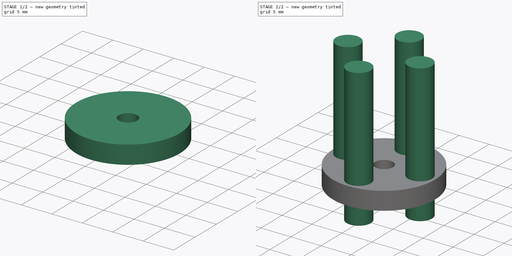
[diagram: build sequence overview — one tinted view per stage of 2, left to right]
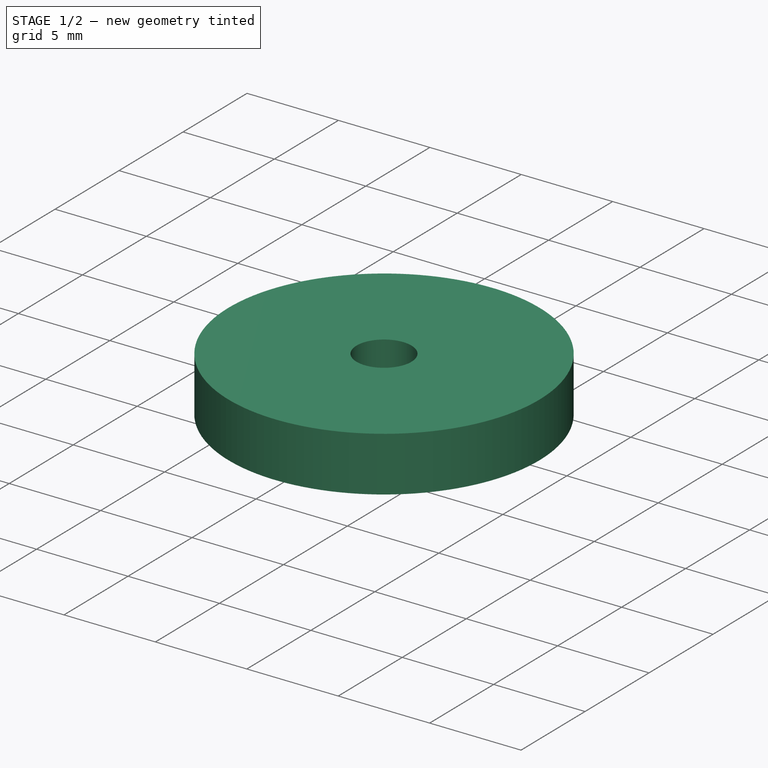
[diagram: stage 1 of 2 — iso view after this stage's code; geometry added in this stage tinted green]
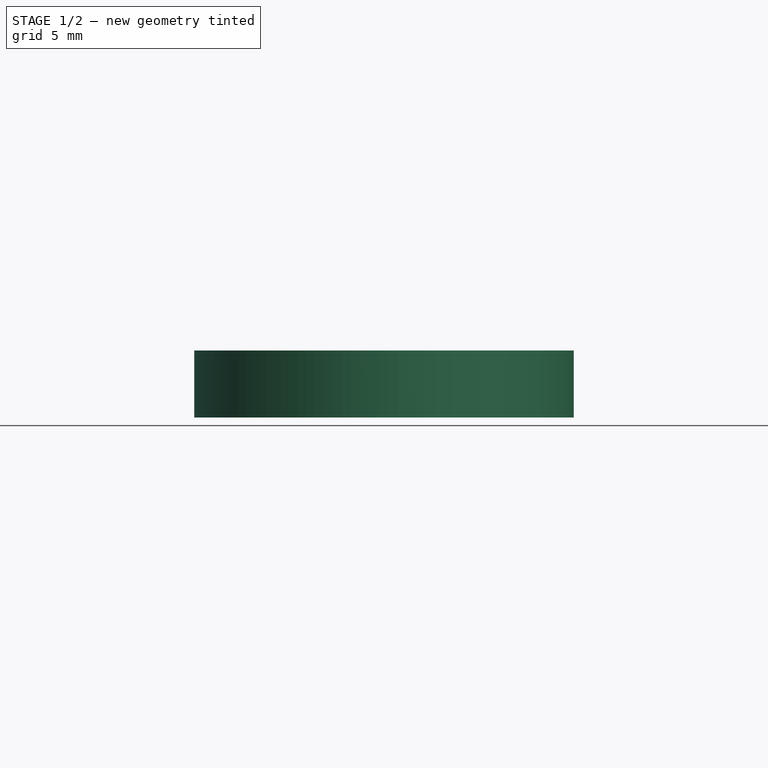
[diagram: stage 1 of 2 — front view after this stage's code; geometry added in this stage tinted green]
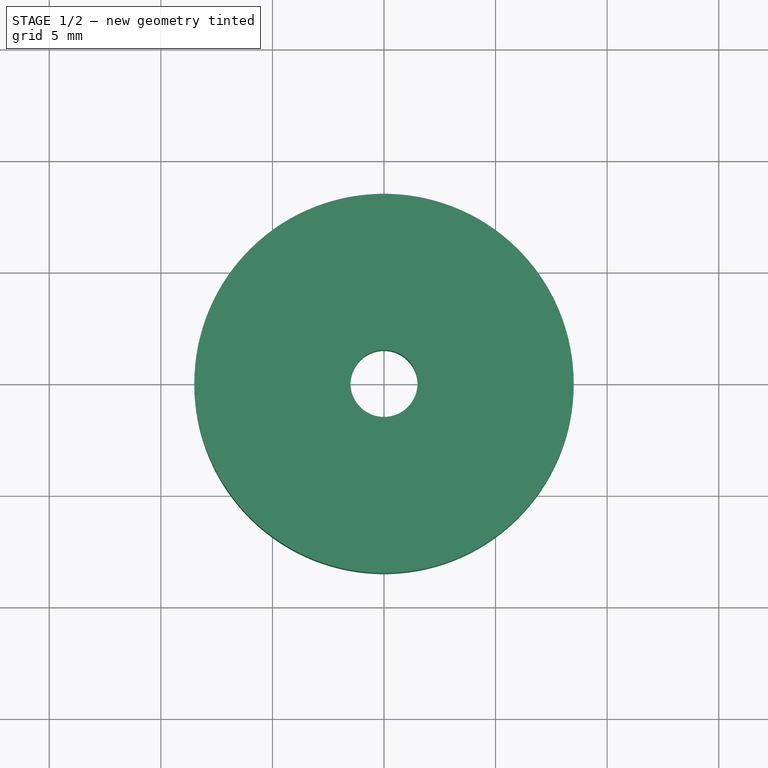
[diagram: stage 1 of 2 — top view after this stage's code; geometry added in this stage tinted green]
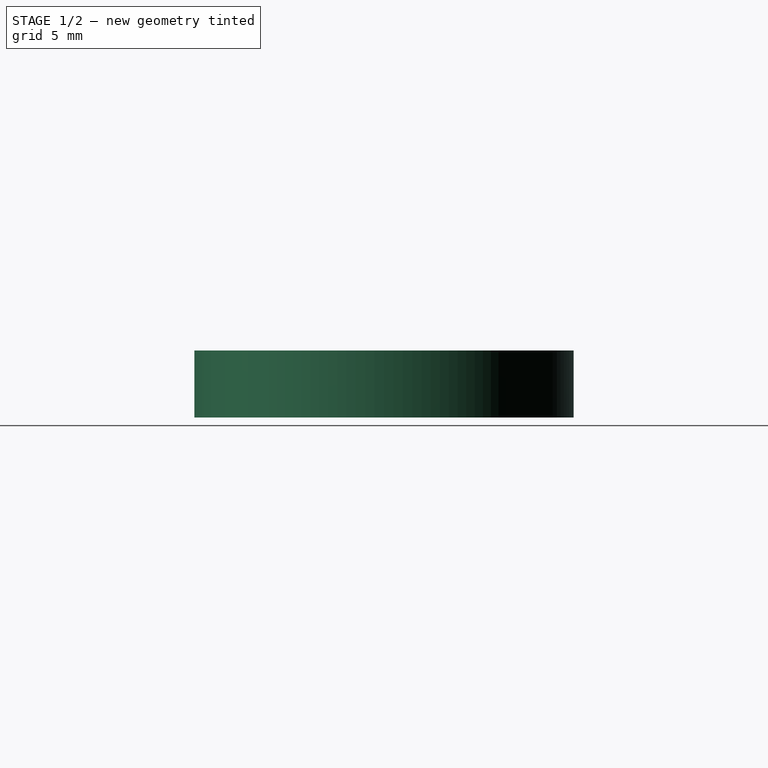
[diagram: stage 1 of 2 — right view after this stage's code; geometry added in this stage tinted green]
FCSTD DOCUMENT  (FreeCAD 0.16R6707 (Git))
Label: enrouleur_XL-320
License: All rights reserved
LicenseURL: http://en.wikipedia.org/wiki/All_rights_reserved
objects: Sketcher::SketchObject×2, PartDesign::Pad×2
note: 6 computed .brp shape members not serialized (recipe doc carries the construction recipe); baked Part::Feature solids carry a one-line shape summary decoded from their .brp

FEATURE [Sketcher::SketchObject] Sketch
  sketch-geometry (2):
    g0: Circle CenterX=0 CenterY=0 CenterZ=0 NormalX=0 NormalY=0 NormalZ=1 Radius=8.5
    g1: Circle CenterX=0 CenterY=0 CenterZ=0 NormalX=0 NormalY=0 NormalZ=1 Radius=1.5
  constraints (4):
    c: Coincident(g0,g-1)
    c: Radius(g0) = 8.5
    c: Coincident(g1,g-1)
    c: Radius(g1) = 1.5
FEATURE [PartDesign::Pad] Pad
  Length = 3
  Length2 = 100
  Sketch = -> Sketch
  Type = 0
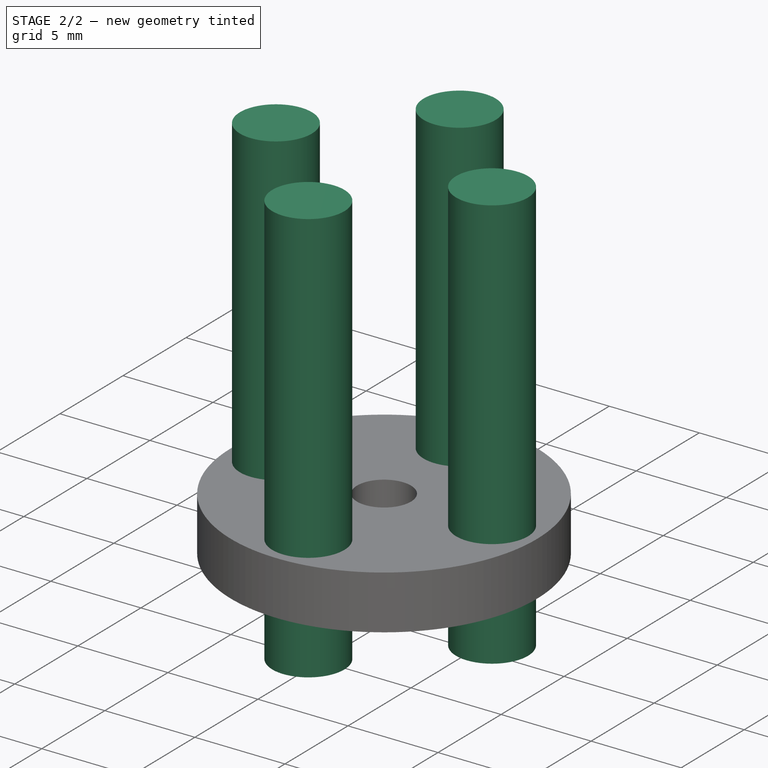
[diagram: stage 2 of 2 — iso view after this stage's code; geometry added in this stage tinted green]
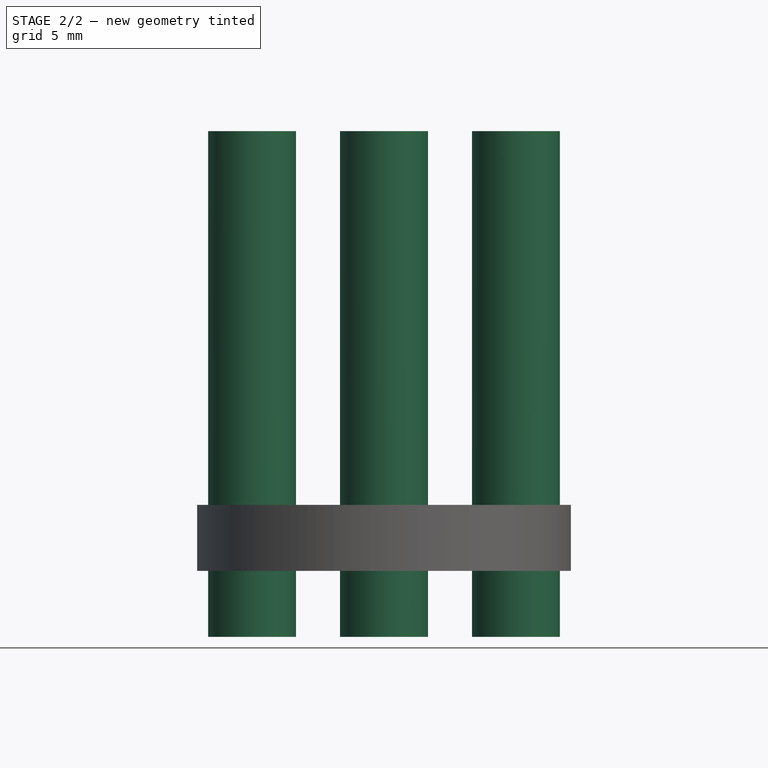
[diagram: stage 2 of 2 — front view after this stage's code; geometry added in this stage tinted green]
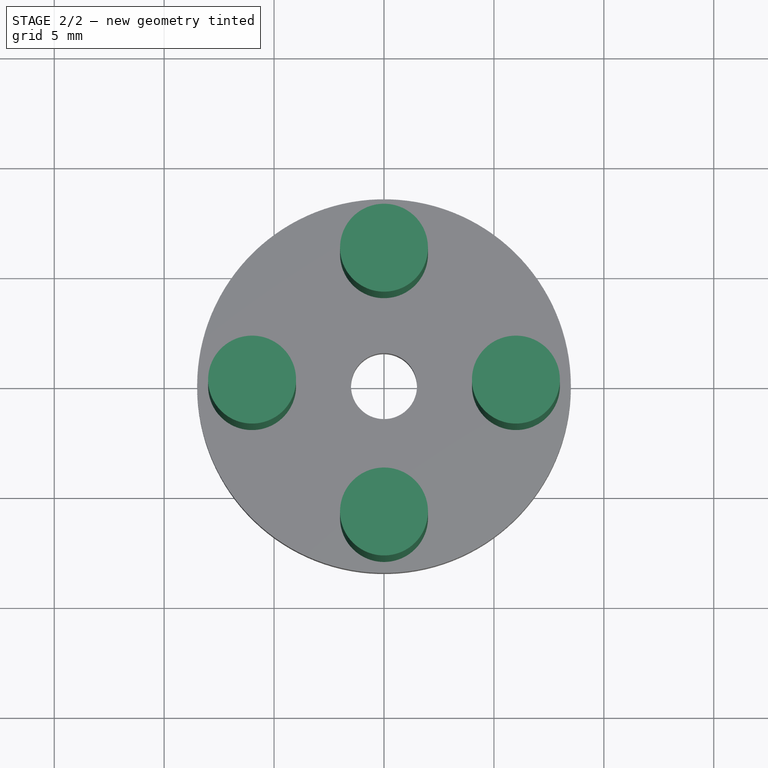
[diagram: stage 2 of 2 — top view after this stage's code; geometry added in this stage tinted green]
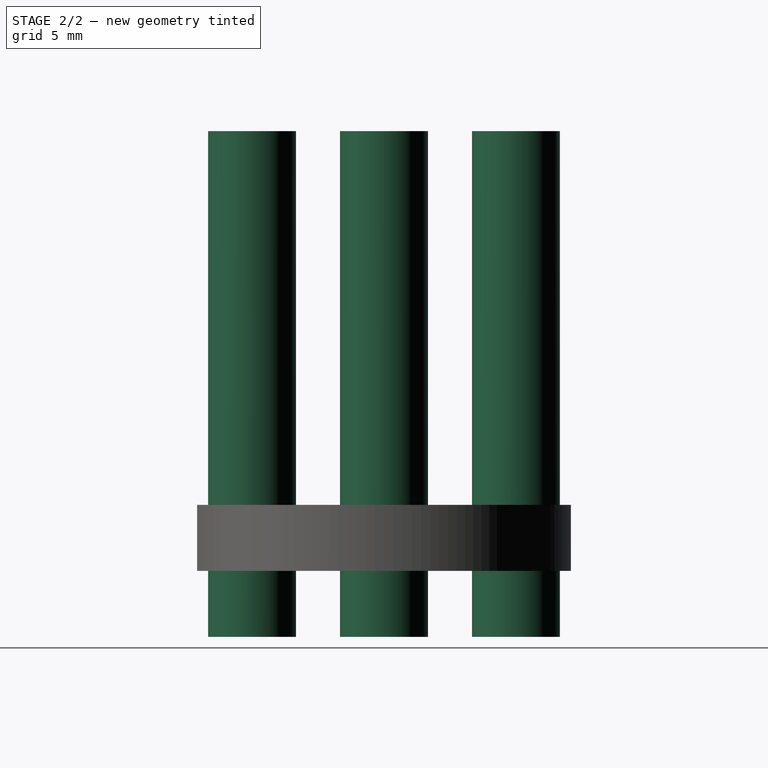
[diagram: stage 2 of 2 — right view after this stage's code; geometry added in this stage tinted green]
FEATURE [Sketcher::SketchObject] Sketch001
  Placement = pos=(0,0,0) rot=(1,0,0;3.14159rad)
  Support = -> Pad [Face3]
  sketch-geometry (4):
    g0: Circle CenterX=0 CenterY=6 CenterZ=0 NormalX=0 NormalY=0 NormalZ=1 Radius=2
    g1: Circle CenterX=6 CenterY=0 CenterZ=0 NormalX=0 NormalY=0 NormalZ=1 Radius=2
    g2: Circle CenterX=-6 CenterY=0 CenterZ=0 NormalX=0 NormalY=0 NormalZ=1 Radius=2
    g3: Circle CenterX=0 CenterY=-6 CenterZ=0 NormalX=0 NormalY=0 NormalZ=1 Radius=2
  constraints (12):
    c: PointOnObject(g0,g-2)
    c: PointOnObject(g1,g-1)
    c: PointOnObject(g2,g-1)
    c: PointOnObject(g3,g-2)
    c: Radius(g0) = 2
    c: Equal(g0,g2)
    c: Equal(g0,g1)
    c: Equal(g0,g3)
    c: DistanceY(g0) = 6
    c: DistanceX(g1) = 6
    c: DistanceY(g3) = -6
    c: DistanceX(g2) = -6
FEATURE [PartDesign::Pad] Pad001
  Length = 3
  Length2 = 20
  Sketch = -> Sketch001
  Type = 4
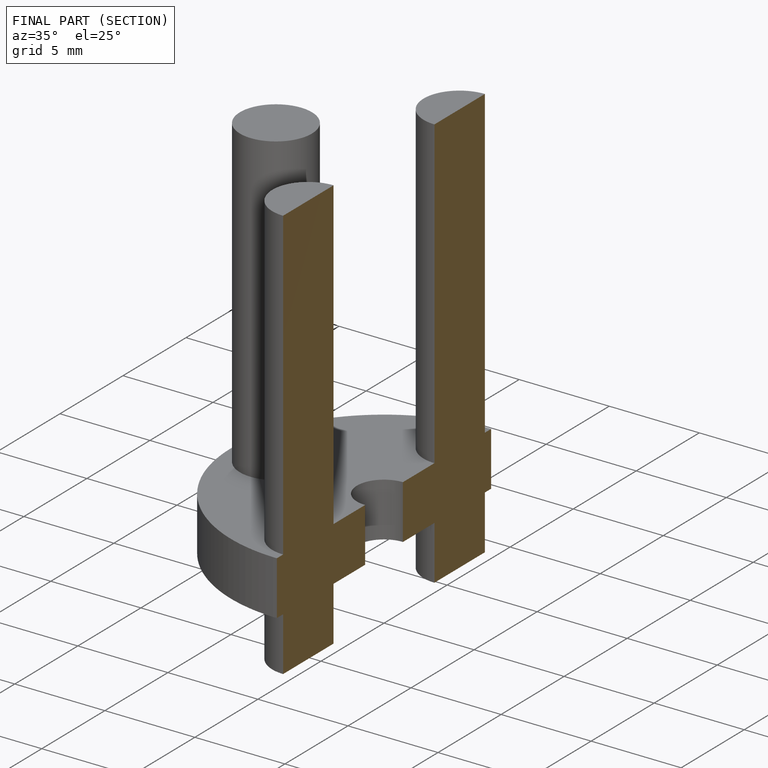
[diagram: finished part — half-section view (interior)]
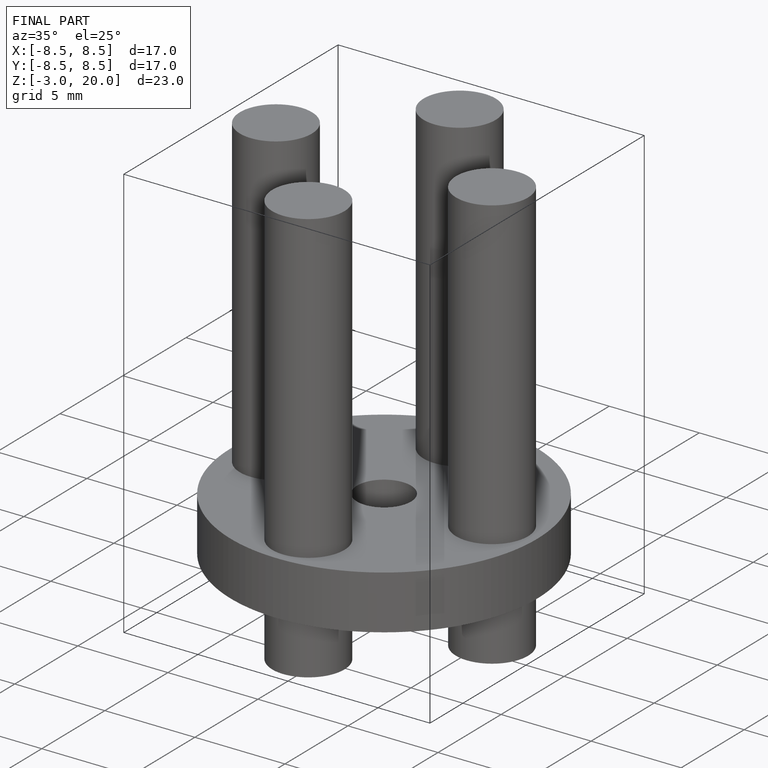
[diagram: finished part — iso view with bounding-box wireframe]
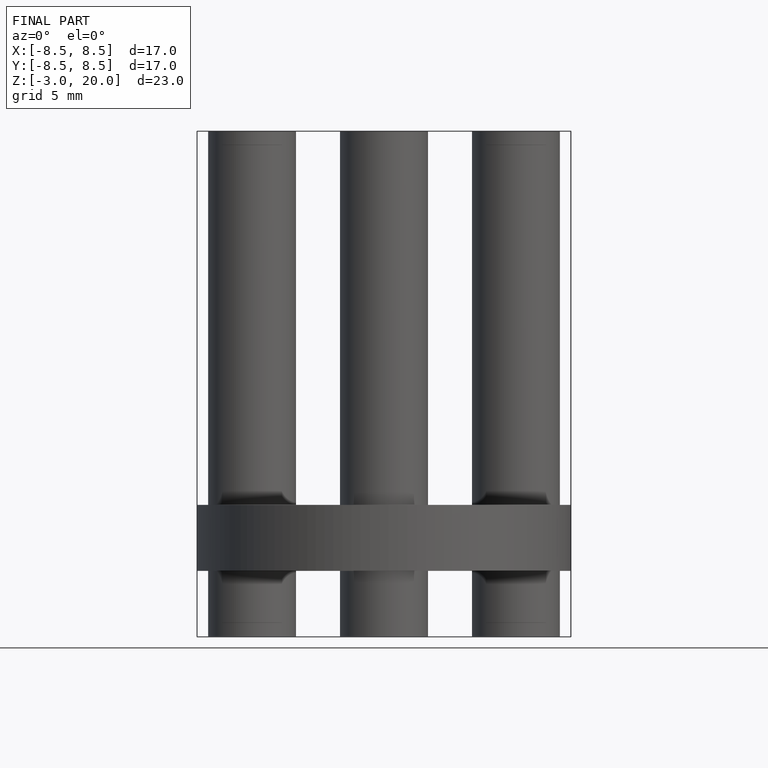
[diagram: finished part — front view with bounding-box wireframe]
